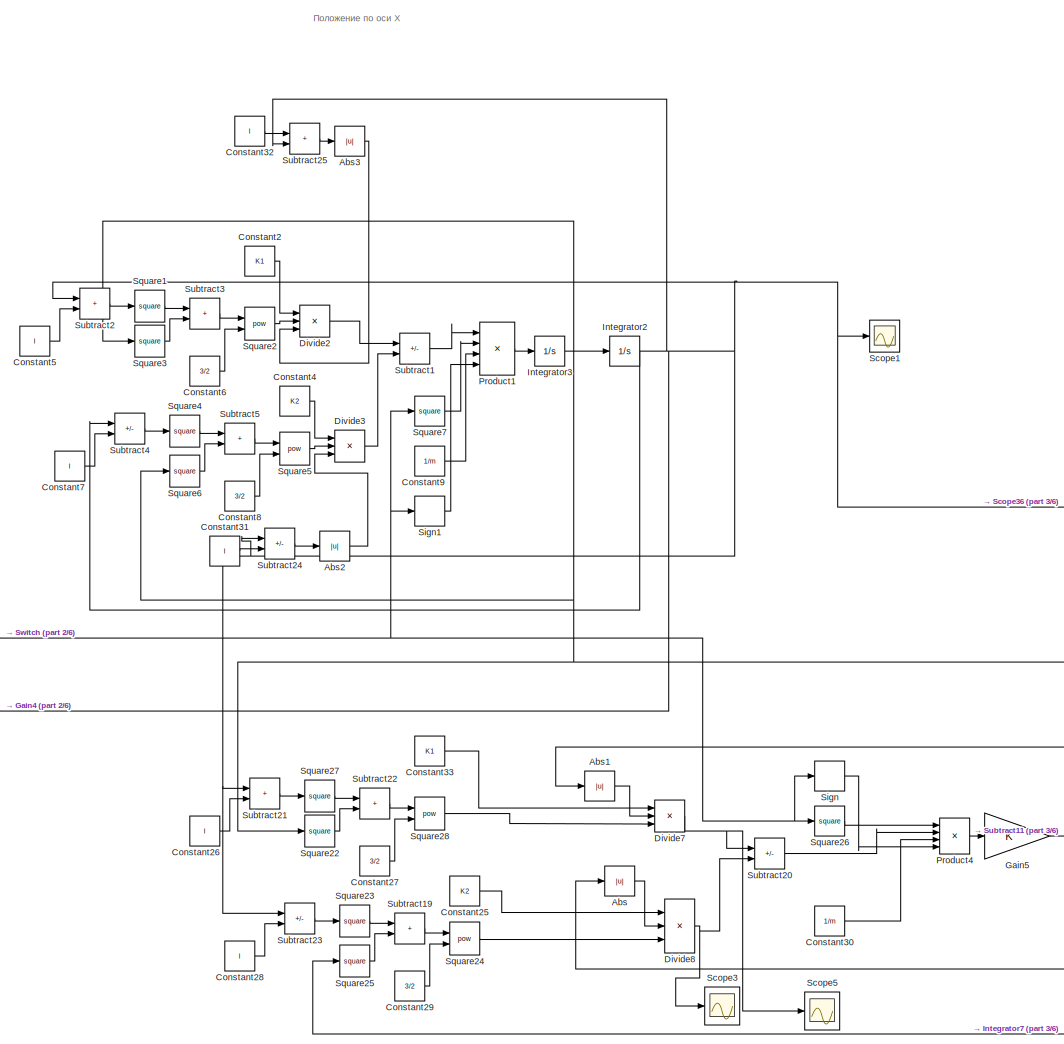
[diagram: root canvas - part 1/6, top center region]
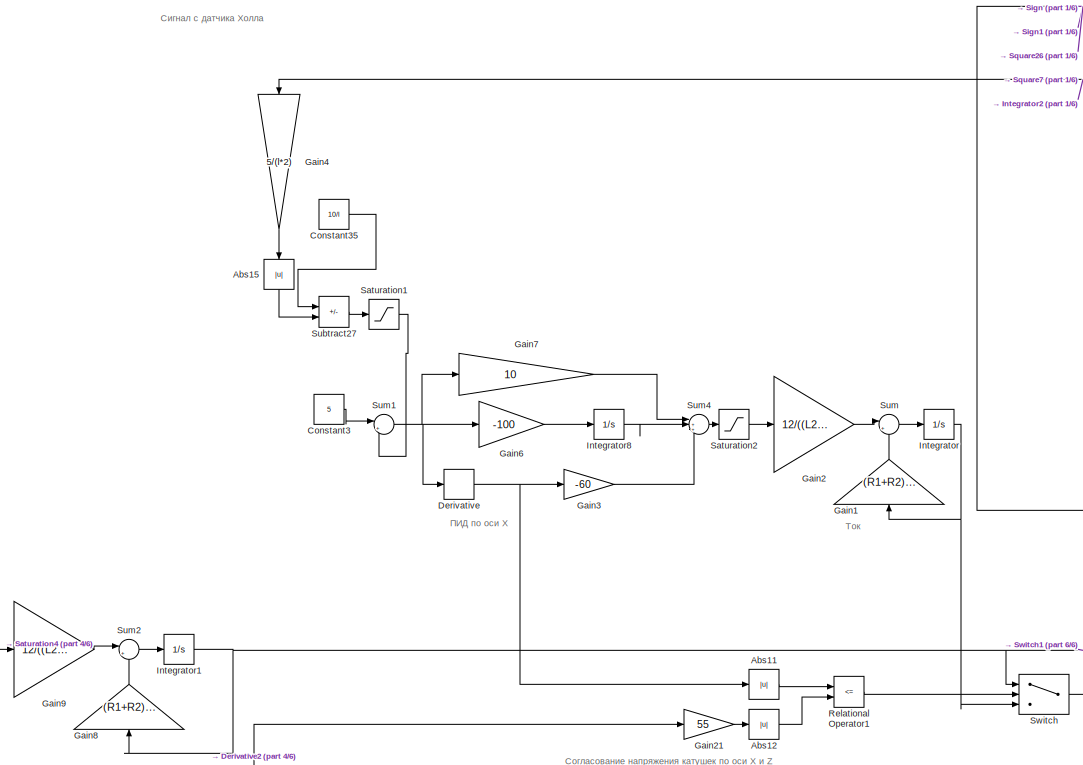
[diagram: root canvas - part 2/6, central region]
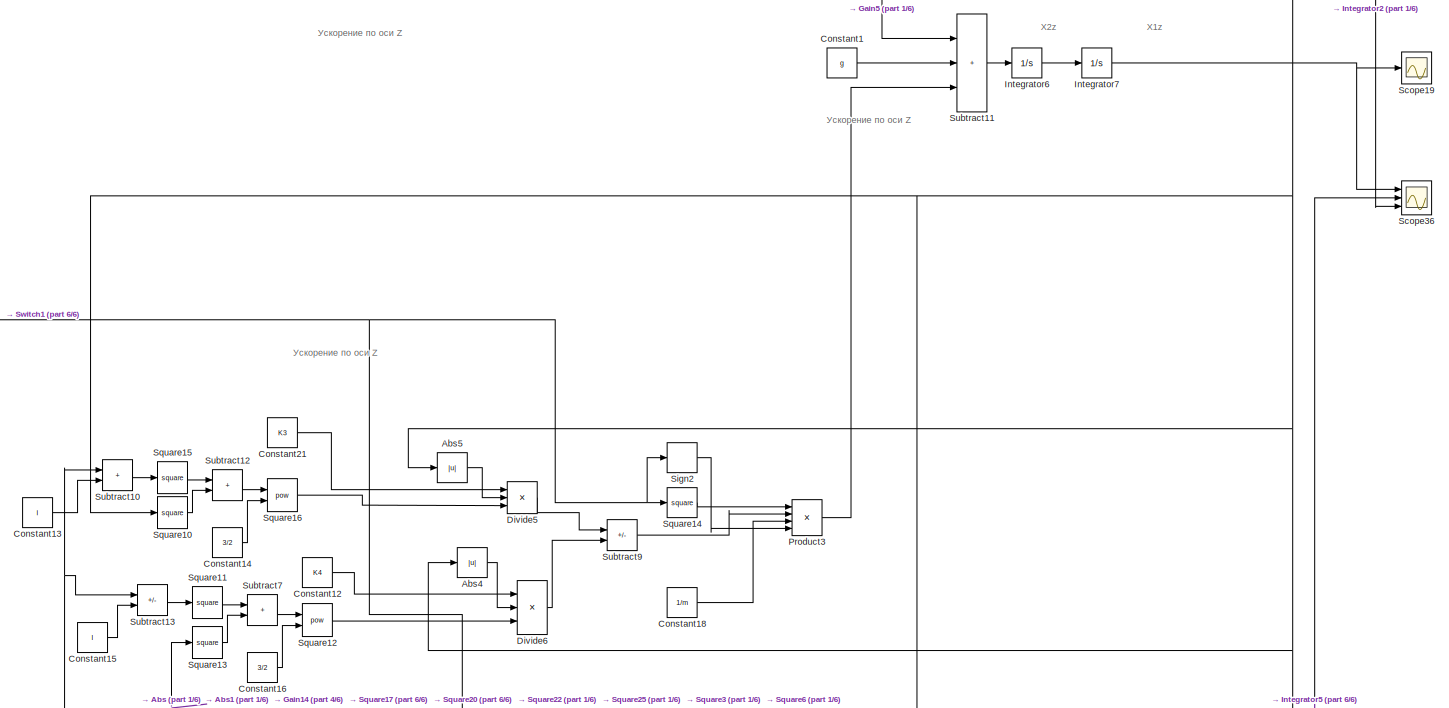
[diagram: root canvas - part 3/6, middle right region]
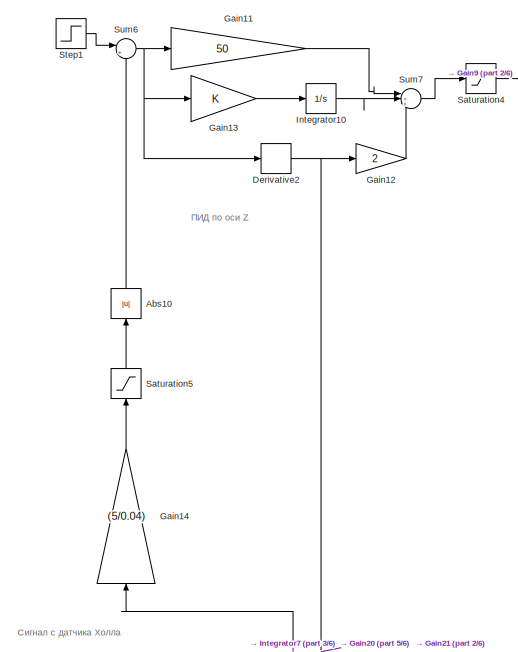
[diagram: root canvas - part 4/6, middle left region]
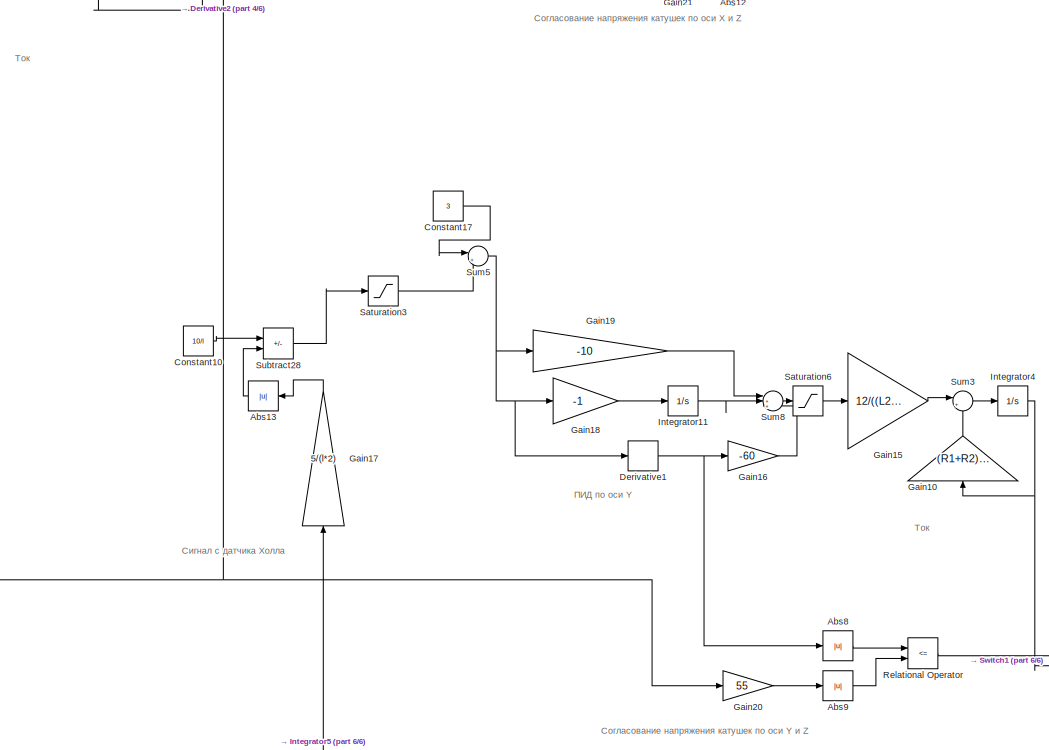
[diagram: root canvas - part 5/6, bottom center region]
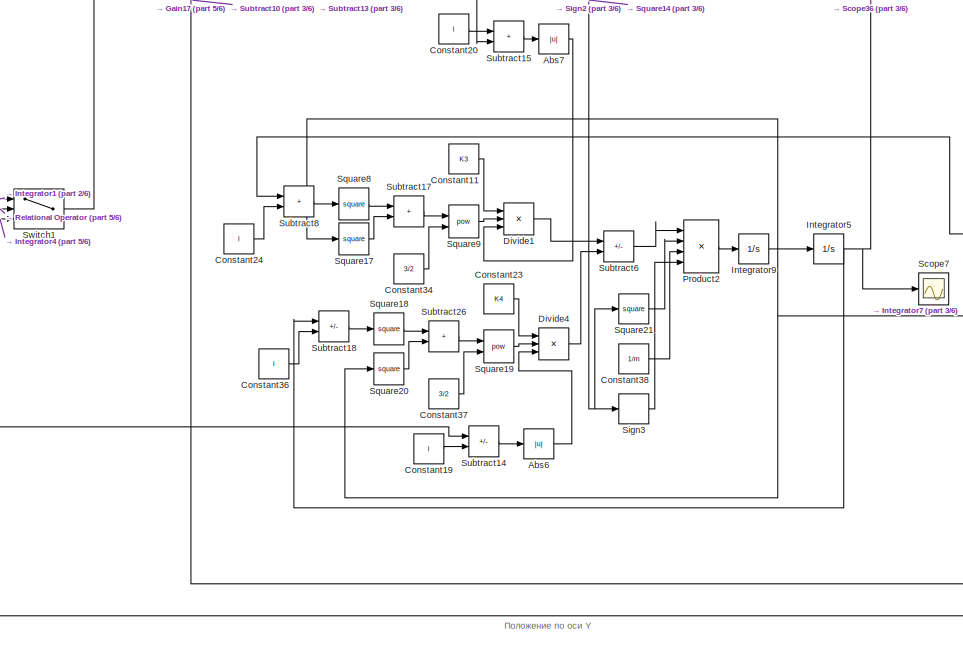
[diagram: root canvas - part 6/6, bottom center region]
MODEL mdl_51217754e520
KIND model
CONFIG AbsTol = auto
CONFIG EnableMultiTasking = off
CONFIG FixedStep = 1e-3
CONFIG MaxStep = auto
CONFIG MinStep = auto
CONFIG RelTol = 1e-3
CONFIG SampleTimeConstraint = Unconstrained
CONFIG SolverName = ode3
CONFIG StartTime = 0.0
CONFIG StopTime = 15
BLOCK [Abs] Abs
  SaturateOnIntegerOverflow = off
BLOCK [Abs] Abs1
  SaturateOnIntegerOverflow = off
BLOCK [Abs] Abs10
  NameLocation = right
  SaturateOnIntegerOverflow = off
BLOCK [Abs] Abs11
  SaturateOnIntegerOverflow = off
BLOCK [Abs] Abs12
  SaturateOnIntegerOverflow = off
BLOCK [Abs] Abs13
  NameLocation = top
  SaturateOnIntegerOverflow = off
BLOCK [Abs] Abs15
  NameLocation = left
  SaturateOnIntegerOverflow = off
BLOCK [Abs] Abs2
  SaturateOnIntegerOverflow = off
BLOCK [Abs] Abs3
  SaturateOnIntegerOverflow = off
BLOCK [Abs] Abs4
  SaturateOnIntegerOverflow = off
BLOCK [Abs] Abs5
  SaturateOnIntegerOverflow = off
BLOCK [Abs] Abs6
  SaturateOnIntegerOverflow = off
BLOCK [Abs] Abs7
  SaturateOnIntegerOverflow = off
BLOCK [Abs] Abs8
  SaturateOnIntegerOverflow = off
BLOCK [Abs] Abs9
  SaturateOnIntegerOverflow = off
BLOCK [Constant] Constant1
  Value = g
BLOCK [Constant] Constant10
  Value = 10/l
BLOCK [Constant] Constant11
  Value = K3
BLOCK [Constant] Constant12
  Value = K4
BLOCK [Constant] Constant13
  Value = l
BLOCK [Constant] Constant14
  Value = 3/2
BLOCK [Constant] Constant15
  Value = l
BLOCK [Constant] Constant16
  Value = 3/2
BLOCK [Constant] Constant17
  Value = 3
BLOCK [Constant] Constant18
  Value = 1/m
BLOCK [Constant] Constant19
  Value = l
BLOCK [Constant] Constant2
  Value = K1
BLOCK [Constant] Constant20
  Value = l
BLOCK [Constant] Constant21
  Value = K3
BLOCK [Constant] Constant23
  Value = K4
BLOCK [Constant] Constant24
  Value = l
BLOCK [Constant] Constant25
  Value = K2
BLOCK [Constant] Constant26
  Value = l
BLOCK [Constant] Constant27
  Value = 3/2
BLOCK [Constant] Constant28
  Value = l
BLOCK [Constant] Constant29
  Value = 3/2
BLOCK [Constant] Constant3
  Value = 5
BLOCK [Constant] Constant30
  Value = 1/m
BLOCK [Constant] Constant31
  Value = l
BLOCK [Constant] Constant32
  Value = l
BLOCK [Constant] Constant33
  Value = K1
BLOCK [Constant] Constant34
  Value = 3/2
BLOCK [Constant] Constant35
  Value = 10/l
BLOCK [Constant] Constant36
  Value = l
BLOCK [Constant] Constant37
  Value = 3/2
BLOCK [Constant] Constant38
  Value = 1/m
BLOCK [Constant] Constant4
  Value = K2
BLOCK [Constant] Constant5
  Value = l
BLOCK [Constant] Constant6
  Value = 3/2
BLOCK [Constant] Constant7
  Value = l
BLOCK [Constant] Constant8
  Value = 3/2
BLOCK [Constant] Constant9
  Value = 1/m
BLOCK [Derivative] Derivative
BLOCK [Derivative] Derivative1
BLOCK [Derivative] Derivative2
BLOCK [Product] Divide1
  Inputs = */*
  Ports = [3, 1]
BLOCK [Product] Divide2
  Inputs = */*
  Ports = [3, 1]
BLOCK [Product] Divide3
  Inputs = */*
  Ports = [3, 1]
BLOCK [Product] Divide4
  Inputs = */*
  Ports = [3, 1]
BLOCK [Product] Divide5
  Inputs = **/
  Ports = [3, 1]
BLOCK [Product] Divide6
  Inputs = **/
  Ports = [3, 1]
BLOCK [Product] Divide7
  Inputs = **/
  Ports = [3, 1]
BLOCK [Product] Divide8
  Inputs = **/
  Ports = [3, 1]
BLOCK [Gain] Gain1
  Gain = (R1+R2)/(L1+L2)
  NameLocation = right
BLOCK [Gain] Gain10
  Gain = (R1+R2)/(L1+L2)
  NameLocation = right
BLOCK [Gain] Gain11
  Gain = 50
BLOCK [Gain] Gain12
  Gain = 2
BLOCK [Gain] Gain13
BLOCK [Gain] Gain14
  Gain = (5/0.04)
  NameLocation = right
BLOCK [Gain] Gain15
  Gain = 12/((L2+L1)*5)
BLOCK [Gain] Gain16
  Gain = -60
BLOCK [Gain] Gain17
  Gain = 5/(l*2)
  NameLocation = right
BLOCK [Gain] Gain18
  Gain = -1
BLOCK [Gain] Gain19
  Gain = -10
BLOCK [Gain] Gain2
  Gain = 12/((L2+L1)*5)
BLOCK [Gain] Gain20
  Gain = 55
BLOCK [Gain] Gain21
  Gain = 55
BLOCK [Gain] Gain3
  Gain = -60
BLOCK [Gain] Gain4
  Gain = 5/(l*2)
  NameLocation = left
BLOCK [Gain] Gain5
BLOCK [Gain] Gain6
  Gain = -100
BLOCK [Gain] Gain7
  Gain = 10
BLOCK [Gain] Gain8
  Gain = (R1+R2)/(L1+L2)
  NameLocation = right
BLOCK [Gain] Gain9
  Gain = 12/((L2+L1)*5)
BLOCK [Integrator] Integrator
  Ports = [1, 1]
BLOCK [Integrator] Integrator1
  Ports = [1, 1]
BLOCK [Integrator] Integrator10
  Ports = [1, 1]
BLOCK [Integrator] Integrator11
  Ports = [1, 1]
BLOCK [Integrator] Integrator2
  InitialCondition = x10x
  Ports = [1, 1]
BLOCK [Integrator] Integrator3
  Ports = [1, 1]
BLOCK [Integrator] Integrator4
  Ports = [1, 1]
BLOCK [Integrator] Integrator5
  InitialCondition = 1
  Ports = [1, 1]
BLOCK [Integrator] Integrator6
  Ports = [1, 1]
BLOCK [Integrator] Integrator7
  InitialCondition = x10z
  Ports = [1, 1]
BLOCK [Integrator] Integrator8
  Ports = [1, 1]
BLOCK [Integrator] Integrator9
  Ports = [1, 1]
BLOCK [Product] Product1
  Inputs = 4
  Ports = [4, 1]
BLOCK [Product] Product2
  Inputs = 4
  Ports = [4, 1]
BLOCK [Product] Product3
  Inputs = 4
  Ports = [4, 1]
BLOCK [Product] Product4
  Inputs = 4
  Ports = [4, 1]
BLOCK [RelationalOperator] Relational Operator
  InputSameDT = off
  Operator = <=
  OutDataTypeStr = boolean
  Ports = [2, 1]
  RndMeth = Simplest
BLOCK [RelationalOperator] Relational Operator1
  InputSameDT = off
  Operator = <=
  OutDataTypeStr = boolean
  Ports = [2, 1]
  RndMeth = Simplest
BLOCK [Saturate] Saturation1
  LowerLimit = 0
  UpperLimit = 5
BLOCK [Saturate] Saturation2
  LowerLimit = -5
  UpperLimit = 5
BLOCK [Saturate] Saturation3
  LowerLimit = 0
  UpperLimit = 5
BLOCK [Saturate] Saturation4
  LowerLimit = -5
  UpperLimit = 5
BLOCK [Saturate] Saturation5
  LowerLimit = -5
  NameLocation = right
  UpperLimit = 0
BLOCK [Saturate] Saturation6
  LowerLimit = -5
  UpperLimit = 5
BLOCK [Scope] Scope1
  Floating = off
  NumInputPorts = 1
  Ports = [1]
  ScopeSpecificationString = Simulink.scopes.TimeScopeBlockCfg('CurrentConfiguration', extmgr.ConfigurationSet(extmgr.Configuration('Core','General UI',true),extmgr.Configuration('Core','Source UI',true),extmgr.Configuration('Sources','WiredSimulink',true,'DataLoggingVariableName','scopeOutx','DataLogging',true,'DataLoggingSaveFormat','StructureWithTime'),extmgr.Configuration('Visuals','Time Domain',true,'SerializedDisplays',...<+1461ch>
BLOCK [Scope] Scope19
  Floating = off
  NumInputPorts = 1
  Ports = [1]
  ScopeSpecificationString = Simulink.scopes.TimeScopeBlockCfg('CurrentConfiguration', extmgr.ConfigurationSet(extmgr.Configuration('Core','General UI',true),extmgr.Configuration('Core','Source UI',true),extmgr.Configuration('Sources','WiredSimulink',true,'DataLogging',true,'DataLoggingVariableName','scopeOutz','DataLoggingSaveFormat','StructureWithTime'),extmgr.Configuration('Visuals','Time Domain',true,'SerializedDisplays',...<+1480ch>
BLOCK [Scope] Scope3
  Floating = off
  NumInputPorts = 1
  Ports = [1]
  ScopeSpecificationString = Simulink.scopes.TimeScopeBlockCfg('CurrentConfiguration', extmgr.ConfigurationSet(extmgr.Configuration('Core','General UI',true),extmgr.Configuration('Core','Source UI',true),extmgr.Configuration('Sources','WiredSimulink',true,'DataLoggingVariableName','ScopeData3'),extmgr.Configuration('Visuals','Time Domain',true,'SerializedDisplays',{struct('MinYLimReal','-0.00152','MaxYLimReal','0.01366','YLab...<+1395ch>
BLOCK [Scope] Scope36
  Floating = off
  NumInputPorts = 3
  Ports = [3]
  ScopeSpecificationString = Simulink.scopes.TimeScopeBlockCfg('CurrentConfiguration', extmgr.ConfigurationSet(extmgr.Configuration('Core','General UI',true),extmgr.Configuration('Core','Source UI',true),extmgr.Configuration('Sources','WiredSimulink',true,'DataLoggingVariableName','scopeOut','DataLogging',true,'DataLoggingSaveFormat','StructureWithTime'),extmgr.Configuration('Visuals','Time Domain',true,'SerializedDisplays',{...<+1507ch>
BLOCK [Scope] Scope5
  Floating = off
  NumInputPorts = 1
  Ports = [1]
  ScopeSpecificationString = Simulink.scopes.TimeScopeBlockCfg('CurrentConfiguration', extmgr.ConfigurationSet(extmgr.Configuration('Core','General UI',true),extmgr.Configuration('Core','Source UI',true),extmgr.Configuration('Sources','WiredSimulink',true,'DataLoggingVariableName','ScopeData5'),extmgr.Configuration('Visuals','Time Domain',true,'SerializedDisplays',{struct('MinYLimReal','-0.00152','MaxYLimReal','0.01366','YLab...<+1395ch>
BLOCK [Scope] Scope7
  Floating = off
  NumInputPorts = 1
  Ports = [1]
  ScopeSpecificationString = Simulink.scopes.TimeScopeBlockCfg('CurrentConfiguration', extmgr.ConfigurationSet(extmgr.Configuration('Core','General UI',true),extmgr.Configuration('Core','Source UI',true),extmgr.Configuration('Sources','WiredSimulink',true,'DataLoggingVariableName','scopeOuty','DataLogging',true,'DataLoggingSaveFormat','StructureWithTime'),extmgr.Configuration('Visuals','Time Domain',true,'SerializedDisplays',...<+1455ch>
BLOCK [Signum] Sign
BLOCK [Signum] Sign1
BLOCK [Signum] Sign2
BLOCK [Signum] Sign3
BLOCK [Math] Square1
  Operator = square
  Ports = [1, 1]
BLOCK [Math] Square10
  Operator = square
  Ports = [1, 1]
BLOCK [Math] Square11
  Operator = square
  Ports = [1, 1]
BLOCK [Math] Square12
  Operator = pow
  Ports = [2, 1]
BLOCK [Math] Square13
  Operator = square
  Ports = [1, 1]
BLOCK [Math] Square14
  Operator = square
  Ports = [1, 1]
BLOCK [Math] Square15
  Operator = square
  Ports = [1, 1]
BLOCK [Math] Square16
  Operator = pow
  Ports = [2, 1]
BLOCK [Math] Square17
  Operator = square
  Ports = [1, 1]
BLOCK [Math] Square18
  Operator = square
  Ports = [1, 1]
BLOCK [Math] Square19
  Operator = pow
  Ports = [2, 1]
BLOCK [Math] Square2
  Operator = pow
  Ports = [2, 1]
BLOCK [Math] Square20
  Operator = square
  Ports = [1, 1]
BLOCK [Math] Square21
  Operator = square
  Ports = [1, 1]
BLOCK [Math] Square22
  Operator = square
  Ports = [1, 1]
BLOCK [Math] Square23
  Operator = square
  Ports = [1, 1]
BLOCK [Math] Square24
  Operator = pow
  Ports = [2, 1]
BLOCK [Math] Square25
  Operator = square
  Ports = [1, 1]
BLOCK [Math] Square26
  Operator = square
  Ports = [1, 1]
BLOCK [Math] Square27
  Operator = square
  Ports = [1, 1]
BLOCK [Math] Square28
  Operator = pow
  Ports = [2, 1]
BLOCK [Math] Square3
  Operator = square
  Ports = [1, 1]
BLOCK [Math] Square4
  Operator = square
  Ports = [1, 1]
BLOCK [Math] Square5
  Operator = pow
  Ports = [2, 1]
BLOCK [Math] Square6
  Operator = square
  Ports = [1, 1]
BLOCK [Math] Square7
  Operator = square
  Ports = [1, 1]
BLOCK [Math] Square8
  Operator = square
  Ports = [1, 1]
BLOCK [Math] Square9
  Operator = pow
  Ports = [2, 1]
BLOCK [Step] Step1
  After = 3.5
  SampleTime = 0
  Time = 0
BLOCK [Sum] Subtract1
  IconShape = rectangular
  Inputs = +-
  Ports = [2, 1]
BLOCK [Sum] Subtract10
  IconShape = rectangular
  Ports = [2, 1]
BLOCK [Sum] Subtract11
  IconShape = rectangular
  Inputs = +++
  Ports = [3, 1]
BLOCK [Sum] Subtract12
  IconShape = rectangular
  Ports = [2, 1]
BLOCK [Sum] Subtract13
  IconShape = rectangular
  Inputs = +-
  Ports = [2, 1]
BLOCK [Sum] Subtract14
  IconShape = rectangular
  Inputs = +-
  NameLocation = top
  Ports = [2, 1]
BLOCK [Sum] Subtract15
  IconShape = rectangular
  Ports = [2, 1]
BLOCK [Sum] Subtract17
  IconShape = rectangular
  NameLocation = top
  Ports = [2, 1]
BLOCK [Sum] Subtract18
  IconShape = rectangular
  Inputs = +-
  Ports = [2, 1]
BLOCK [Sum] Subtract19
  IconShape = rectangular
  Ports = [2, 1]
BLOCK [Sum] Subtract2
  IconShape = rectangular
  Ports = [2, 1]
BLOCK [Sum] Subtract20
  IconShape = rectangular
  Inputs = --
  Ports = [2, 1]
BLOCK [Sum] Subtract21
  IconShape = rectangular
  Ports = [2, 1]
BLOCK [Sum] Subtract22
  IconShape = rectangular
  Ports = [2, 1]
BLOCK [Sum] Subtract23
  IconShape = rectangular
  Inputs = +-
  Ports = [2, 1]
BLOCK [Sum] Subtract24
  IconShape = rectangular
  Inputs = +-
  NameLocation = top
  Ports = [2, 1]
BLOCK [Sum] Subtract25
  IconShape = rectangular
  Ports = [2, 1]
BLOCK [Sum] Subtract26
  IconShape = rectangular
  Ports = [2, 1]
BLOCK [Sum] Subtract27
  IconShape = rectangular
  Inputs = +-
  Ports = [2, 1]
BLOCK [Sum] Subtract28
  IconShape = rectangular
  Inputs = +-
  Ports = [2, 1]
BLOCK [Sum] Subtract3
  IconShape = rectangular
  Ports = [2, 1]
BLOCK [Sum] Subtract4
  IconShape = rectangular
  Inputs = +-
  Ports = [2, 1]
BLOCK [Sum] Subtract5
  IconShape = rectangular
  Ports = [2, 1]
BLOCK [Sum] Subtract6
  IconShape = rectangular
  Inputs = +-
  Ports = [2, 1]
BLOCK [Sum] Subtract7
  IconShape = rectangular
  Ports = [2, 1]
BLOCK [Sum] Subtract8
  IconShape = rectangular
  Ports = [2, 1]
BLOCK [Sum] Subtract9
  IconShape = rectangular
  Inputs = --
  Ports = [2, 1]
BLOCK [Sum] Sum
  Inputs = |+-
  Ports = [2, 1]
BLOCK [Sum] Sum1
  Inputs = |+-
  Ports = [2, 1]
BLOCK [Sum] Sum2
  Inputs = |+-
  Ports = [2, 1]
BLOCK [Sum] Sum3
  Inputs = |+-
  Ports = [2, 1]
BLOCK [Sum] Sum4
  Inputs = |+++
  Ports = [3, 1]
BLOCK [Sum] Sum5
  Inputs = |+-
  Ports = [2, 1]
BLOCK [Sum] Sum6
  Inputs = |+-
  Ports = [2, 1]
BLOCK [Sum] Sum7
  Inputs = |+++
  Ports = [3, 1]
BLOCK [Sum] Sum8
  Inputs = |+++
  Ports = [3, 1]
BLOCK [Switch] Switch
  InputSameDT = off
  SaturateOnIntegerOverflow = off
  Threshold = 0.5
BLOCK [Switch] Switch1
  Criteria = u2 > Threshold
  InputSameDT = off
  SaturateOnIntegerOverflow = off
  Threshold = 0.5
ANNOTATION (root): X1z
ANNOTATION (root): X2z
ANNOTATION (root): ПИД по оси X
ANNOTATION (root): ПИД по оси Y
ANNOTATION (root): Сигнал с датчика Холла
ANNOTATION (root): Согласование напряжения катушек по оси Y и Z
ANNOTATION (root): Ток
ANNOTATION (root): Ускорение по оси Z
ANNOTATION (root): ПИД по оси Z
ANNOTATION (root): Положение по оси X
ANNOTATION (root): Положение по оси Y
ANNOTATION (root): Согласование напряжения катушек по оси X и Z
LINE Abs10:1 -> Sum6:2
LINE Abs11:1 -> Relational Operator1:1
LINE Abs12:1 -> Relational Operator1:2
LINE Abs13:1 -> Subtract28:2
LINE Abs15:1 -> Subtract27:2
LINE Abs1:1 -> Divide7:2
LINE Abs2:1 -> Divide3:3
LINE Abs3:1 -> Divide2:3
LINE Abs4:1 -> Divide6:2
LINE Abs5:1 -> Divide5:2
LINE Abs6:1 -> Divide4:3
LINE Abs7:1 -> Divide1:3
LINE Abs8:1 -> Relational Operator:1
LINE Abs9:1 -> Relational Operator:2
LINE Abs:1 -> Divide8:2
LINE Constant10:1 -> Subtract28:1
LINE Constant11:1 -> Divide1:1
LINE Constant12:1 -> Divide6:1
LINE Constant13:1 -> Subtract10:2
LINE Constant14:1 -> Square16:2
LINE Constant15:1 -> Subtract13:2
LINE Constant16:1 -> Square12:2
LINE Constant17:1 -> Sum5:1
LINE Constant18:1 -> Product3:3
LINE Constant19:1 -> Subtract14:2
LINE Constant1:1 -> Subtract11:2
LINE Constant20:1 -> Subtract15:1
LINE Constant21:1 -> Divide5:1
LINE Constant23:1 -> Divide4:1
LINE Constant24:1 -> Subtract8:2
LINE Constant25:1 -> Divide8:1
LINE Constant26:1 -> Subtract21:2
LINE Constant27:1 -> Square28:2
LINE Constant28:1 -> Subtract23:2
LINE Constant29:1 -> Square24:2
LINE Constant2:1 -> Divide2:1
LINE Constant30:1 -> Product4:3
LINE Constant31:1 -> Subtract24:2
LINE Constant32:1 -> Subtract25:1
LINE Constant33:1 -> Divide7:1
LINE Constant34:1 -> Square9:2
LINE Constant35:1 -> Subtract27:1
LINE Constant36:1 -> Subtract18:2
LINE Constant37:1 -> Square19:2
LINE Constant38:1 -> Product2:3
LINE Constant3:1 -> Sum1:1
LINE Constant4:1 -> Divide3:1
LINE Constant5:1 -> Subtract2:2
LINE Constant6:1 -> Square2:2
LINE Constant7:1 -> Subtract4:2
LINE Constant8:1 -> Square5:2
LINE Constant9:1 -> Product1:3
NET Derivative1:1 -> Abs8:1, Gain16:1
NET Derivative2:1 -> Gain12:1, Gain20:1, Gain21:1
NET Derivative:1 -> Abs11:1, Gain3:1
LINE Divide1:1 -> Subtract6:1
LINE Divide2:1 -> Subtract1:1
LINE Divide3:1 -> Subtract1:2
LINE Divide4:1 -> Subtract6:2
LINE Divide5:1 -> Subtract9:1
LINE Divide6:1 -> Subtract9:2
NET Divide7:1 -> Scope5:1, Subtract20:1
NET Divide8:1 -> Scope3:1, Subtract20:2
LINE Gain10:1 -> Sum3:2
LINE Gain11:1 -> Sum7:1
LINE Gain12:1 -> Sum7:3
LINE Gain13:1 -> Integrator10:1
LINE Gain14:1 -> Saturation5:1
LINE Gain15:1 -> Sum3:1
LINE Gain16:1 -> Sum8:3
LINE Gain17:1 -> Abs13:1
LINE Gain18:1 -> Integrator11:1
LINE Gain19:1 -> Sum8:1
LINE Gain1:1 -> Sum:2
LINE Gain20:1 -> Abs9:1
LINE Gain21:1 -> Abs12:1
LINE Gain2:1 -> Sum:1
LINE Gain3:1 -> Sum4:3
LINE Gain4:1 -> Abs15:1
LINE Gain5:1 -> Subtract11:1
LINE Gain6:1 -> Integrator8:1
LINE Gain7:1 -> Sum4:1
LINE Gain8:1 -> Sum2:2
LINE Gain9:1 -> Sum2:1
LINE Integrator10:1 -> Sum7:2
LINE Integrator11:1 -> Sum8:2
NET Integrator1:1 -> Gain8:1, Switch1:1, Switch:1
NET Integrator2:1 -> Gain4:1, Scope1:1, Scope36:3, Subtract21:1, Subtract23:1, Subtract24:1, Subtract25:2, Subtract2:1, Subtract4:1
LINE Integrator3:1 -> Integrator2:1
NET Integrator4:1 -> Gain10:1, Switch1:3
NET Integrator5:1 -> Gain17:1, Scope36:2, Scope7:1, Subtract10:1, Subtract13:1, Subtract14:1, Subtract15:2, Subtract18:1, Subtract8:1
LINE Integrator6:1 -> Integrator7:1
NET Integrator7:1 -> Abs1:1, Abs4:1, Abs5:1, Abs:1, Gain14:1, Scope19:1, Scope36:1, Square10:1, Square13:1, Square17:1, Square20:1, Square22:1, Square25:1, Square3:1, Square6:1
LINE Integrator8:1 -> Sum4:2
LINE Integrator9:1 -> Integrator5:1
NET Integrator:1 -> Gain1:1, Switch:3
LINE Product1:1 -> Integrator3:1
LINE Product2:1 -> Integrator9:1
LINE Product3:1 -> Subtract11:3
LINE Product4:1 -> Gain5:1
LINE Relational Operator1:1 -> Switch:2
LINE Relational Operator:1 -> Switch1:2
LINE Saturation1:1 -> Sum1:2
LINE Saturation2:1 -> Gain2:1
LINE Saturation3:1 -> Sum5:2
LINE Saturation4:1 -> Gain9:1
LINE Saturation5:1 -> Abs10:1
LINE Saturation6:1 -> Gain15:1
LINE Sign1:1 -> Product1:4
LINE Sign2:1 -> Product3:4
LINE Sign3:1 -> Product2:4
LINE Sign:1 -> Product4:4
LINE Square10:1 -> Subtract12:2
LINE Square11:1 -> Subtract7:1
LINE Square12:1 -> Divide6:3
LINE Square13:1 -> Subtract7:2
LINE Square14:1 -> Product3:1
LINE Square15:1 -> Subtract12:1
LINE Square16:1 -> Divide5:3
LINE Square17:1 -> Subtract17:2
LINE Square18:1 -> Subtract26:1
LINE Square19:1 -> Divide4:2
LINE Square1:1 -> Subtract3:1
LINE Square20:1 -> Subtract26:2
LINE Square21:1 -> Product2:2
LINE Square22:1 -> Subtract22:2
LINE Square23:1 -> Subtract19:1
LINE Square24:1 -> Divide8:3
LINE Square25:1 -> Subtract19:2
LINE Square26:1 -> Product4:1
LINE Square27:1 -> Subtract22:1
LINE Square28:1 -> Divide7:3
LINE Square2:1 -> Divide2:2
LINE Square3:1 -> Subtract3:2
LINE Square4:1 -> Subtract5:1
LINE Square5:1 -> Divide3:2
LINE Square6:1 -> Subtract5:2
LINE Square7:1 -> Product1:2
LINE Square8:1 -> Subtract17:1
LINE Square9:1 -> Divide1:2
LINE Step1:1 -> Sum6:1
LINE Subtract10:1 -> Square15:1
LINE Subtract11:1 -> Integrator6:1
LINE Subtract12:1 -> Square16:1
LINE Subtract13:1 -> Square11:1
LINE Subtract14:1 -> Abs6:1
LINE Subtract15:1 -> Abs7:1
LINE Subtract17:1 -> Square9:1
LINE Subtract18:1 -> Square18:1
LINE Subtract19:1 -> Square24:1
LINE Subtract1:1 -> Product1:1
LINE Subtract20:1 -> Product4:2
LINE Subtract21:1 -> Square27:1
LINE Subtract22:1 -> Square28:1
LINE Subtract23:1 -> Square23:1
LINE Subtract24:1 -> Abs2:1
LINE Subtract25:1 -> Abs3:1
LINE Subtract26:1 -> Square19:1
LINE Subtract27:1 -> Saturation1:1
LINE Subtract28:1 -> Saturation3:1
LINE Subtract2:1 -> Square1:1
LINE Subtract3:1 -> Square2:1
LINE Subtract4:1 -> Square4:1
LINE Subtract5:1 -> Square5:1
LINE Subtract6:1 -> Product2:1
LINE Subtract7:1 -> Square12:1
LINE Subtract8:1 -> Square8:1
LINE Subtract9:1 -> Product3:2
NET Sum1:1 -> Derivative:1, Gain6:1, Gain7:1
LINE Sum2:1 -> Integrator1:1
LINE Sum3:1 -> Integrator4:1
LINE Sum4:1 -> Saturation2:1
NET Sum5:1 -> Derivative1:1, Gain18:1, Gain19:1
NET Sum6:1 -> Derivative2:1, Gain11:1, Gain13:1
LINE Sum7:1 -> Saturation4:1
LINE Sum8:1 -> Saturation6:1
LINE Sum:1 -> Integrator:1
NET Switch1:1 -> Sign2:1, Sign3:1, Square14:1, Square21:1
NET Switch:1 -> Sign1:1, Sign:1, Square26:1, Square7:1
note: NET lines group one-source signal fan-out (src -> all destinations, sorted); 1:1 wires keep LINE
